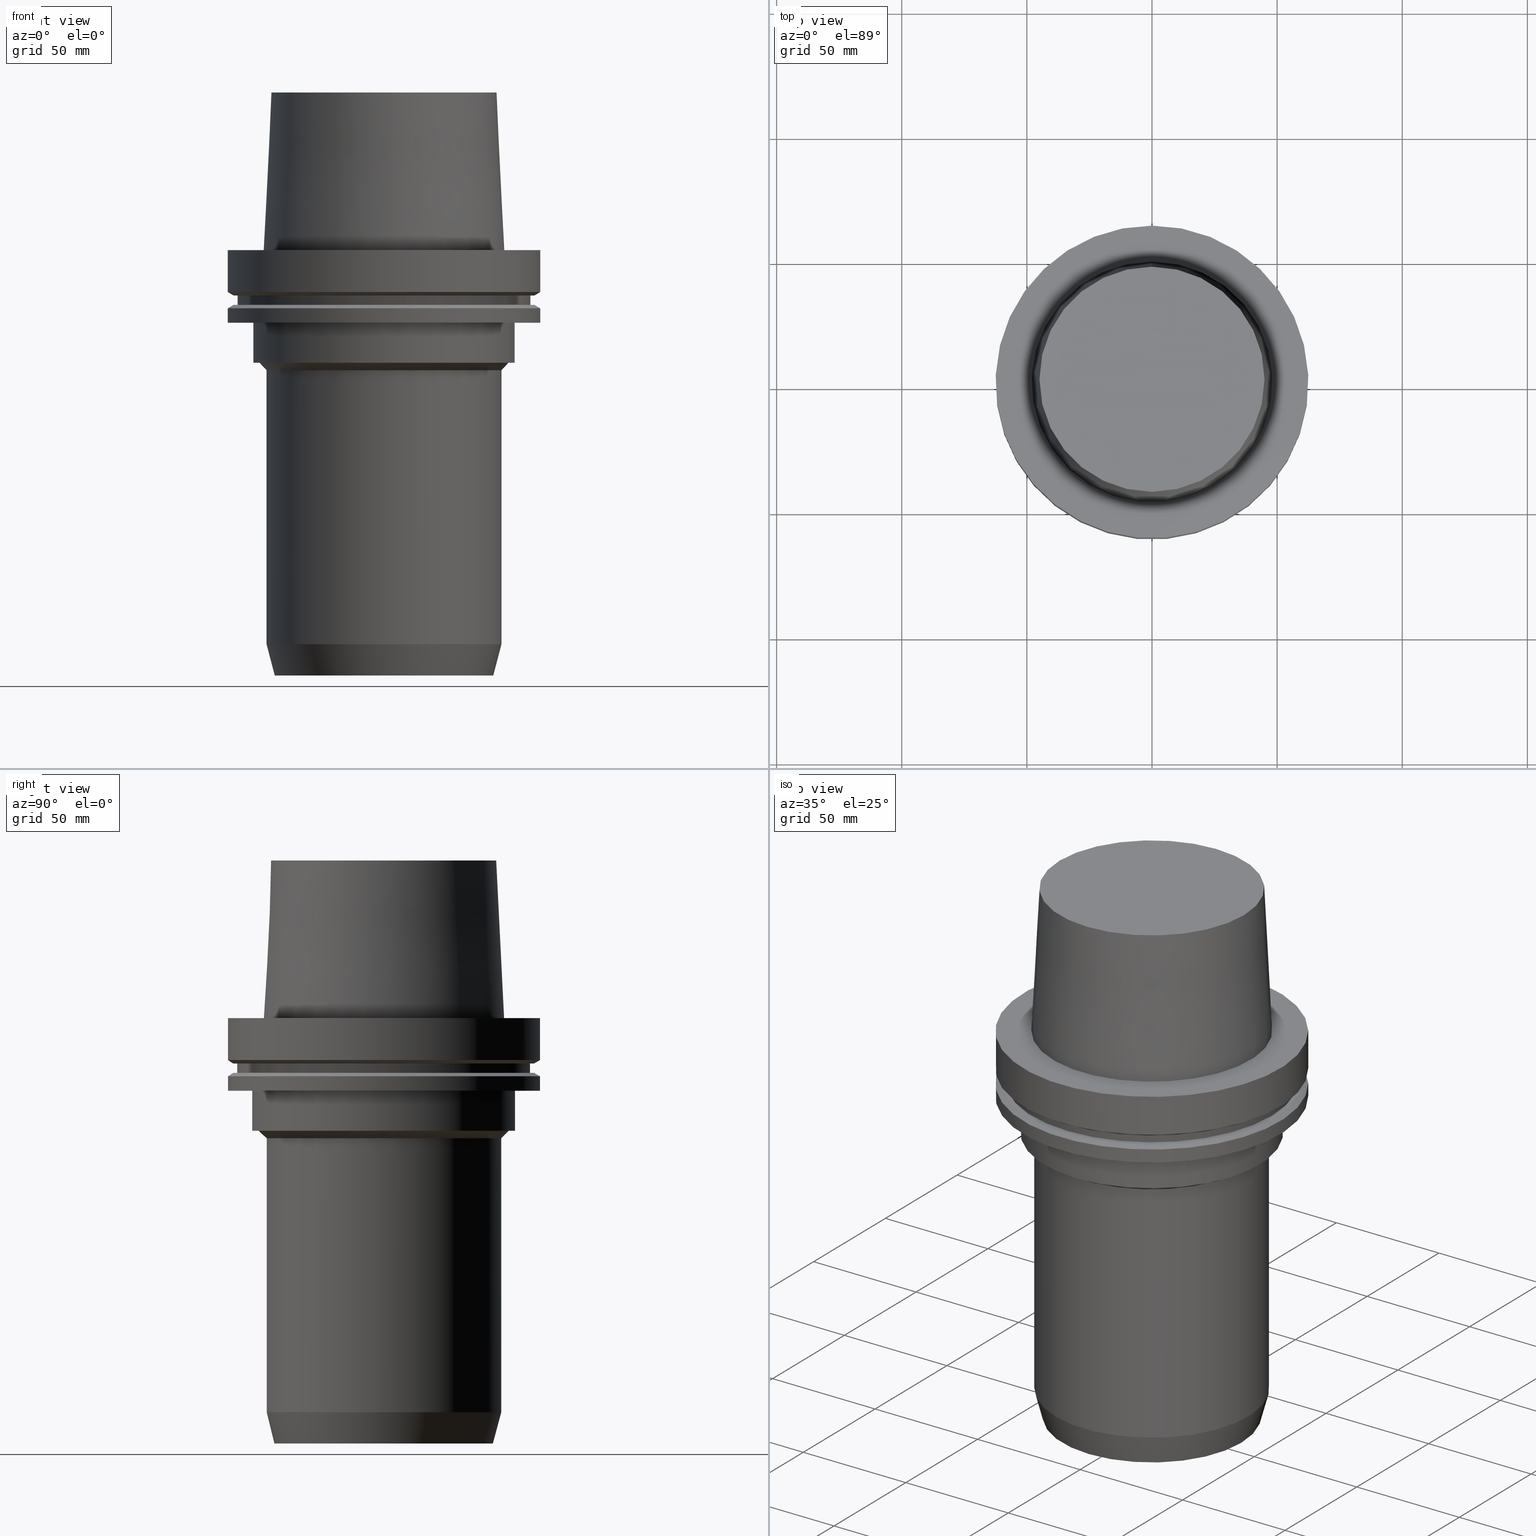
[diagram: canonical four-view strip — front | top / right | iso, engineering-drawing reading convention]
A machine part, canonical four-view strip (front | top / right | iso — engineering-drawing reading convention). The complete STEP part file that produces these views, byte-faithful:
ISO-10303-21;
HEADER;
FILE_DESCRIPTION((''),'1');
FILE_NAME('V:/02_3D_Field-HP\X2\FF71FF6FFF8CFF9F5916\X0\2013/02_Step_Field-HP\X2\FF71FF6FFF8CFF9F5916\X0\2013/HSK-A125-MGT36-170.stp','2017-07-11T04:39:20',(''),(''),'Spatial Interop R21 SP3','Kubotek KeyCreator 2011 V10.0.2 (22737)',' ');
FILE_SCHEMA(('automotive_design'));
ENDSEC;
DATA;
#1=MECHANICAL_DESIGN_GEOMETRIC_PRESENTATION_REPRESENTATION(' ',(#10,#11,#12,#13,#14,#15,#16,#17,#18,#19,#20,#21,#22,#23,#24,#25,#26,#27,#28,#29,#30,#31,#32,#33,#34,#35,#36,#37,#38,#39,#40,#41,#42,#43),#6);
#2=PRODUCT_DEFINITION_CONTEXT('',#44,'design');
#3=APPLICATION_PROTOCOL_DEFINITION('INTERNATIONAL STANDARD','automotive_design',1994,#44);
#4=PRODUCT_CATEGORY_RELATIONSHIP('NONE','NONE',#45,#46);
#5=SHAPE_DEFINITION_REPRESENTATION(#47,#48);
#6= (GEOMETRIC_REPRESENTATION_CONTEXT(3)GLOBAL_UNCERTAINTY_ASSIGNED_CONTEXT((#51))GLOBAL_UNIT_ASSIGNED_CONTEXT((#53,#54,#55))REPRESENTATION_CONTEXT('NONE','WORKSPACE'));
#10=STYLED_ITEM('',(#57),#58);
#11=STYLED_ITEM('',(#59,#60),#61);
#12=STYLED_ITEM('',(#62,#63),#64);
#13=STYLED_ITEM('',(#65),#66);
#14=STYLED_ITEM('',(#67,#68),#69);
#15=STYLED_ITEM('',(#70,#71),#72);
#16=STYLED_ITEM('',(#73,#74),#75);
#17=STYLED_ITEM('',(#76,#77),#78);
#18=STYLED_ITEM('',(#79,#80),#81);
#19=STYLED_ITEM('',(#82,#83),#84);
#20=STYLED_ITEM('',(#85,#86),#87);
#21=STYLED_ITEM('',(#88),#89);
#22=STYLED_ITEM('',(#90),#91);
#23=STYLED_ITEM('',(#92,#93),#94);
#24=STYLED_ITEM('',(#95),#96);
#25=STYLED_ITEM('',(#97),#98);
#26=STYLED_ITEM('',(#99,#100),#101);
#27=STYLED_ITEM('',(#102,#103),#104);
#28=STYLED_ITEM('',(#105),#106);
#29=STYLED_ITEM('',(#107),#108);
#30=STYLED_ITEM('',(#109,#110),#111);
#31=STYLED_ITEM('',(#112,#113),#114);
#32=STYLED_ITEM('',(#115,#116),#117);
#33=STYLED_ITEM('',(#118),#119);
#34=STYLED_ITEM('',(#120),#121);
#35=STYLED_ITEM('',(#122),#123);
#36=STYLED_ITEM('',(#124,#125),#126);
#37=STYLED_ITEM('',(#127),#128);
#38=STYLED_ITEM('',(#129,#130),#131);
#39=STYLED_ITEM('',(#132),#133);
#40=STYLED_ITEM('',(#134),#135);
#41=STYLED_ITEM('',(#136),#137);
#42=STYLED_ITEM('',(#138,#139),#140);
#43=STYLED_ITEM('',(#141),#142);
#44=APPLICATION_CONTEXT(' ');
#45=PRODUCT_CATEGORY('part','NONE');
#46=PRODUCT_RELATED_PRODUCT_CATEGORY('detail',' ',(#143));
#47=PRODUCT_DEFINITION_SHAPE('NONE','NONE',#144);
#48=ADVANCED_BREP_SHAPE_REPRESENTATION('Unnamed[1]',(#114,#145),#6);
#51=UNCERTAINTY_MEASURE_WITH_UNIT(LENGTH_MEASURE(1.0E-006),#53,'','');
#53= (CONVERSION_BASED_UNIT('MILLIMETRE',#148)LENGTH_UNIT()NAMED_UNIT(#151));
#54= (NAMED_UNIT(#153)PLANE_ANGLE_UNIT()SI_UNIT($,.RADIAN.));
#55= (NAMED_UNIT(#153)SOLID_ANGLE_UNIT()SI_UNIT($,.STERADIAN.));
#57=PRESENTATION_STYLE_ASSIGNMENT((#159));
#58=EDGE_CURVE('Unnamed[1]',#160,#160,#161,.T.);
#59=PRESENTATION_STYLE_ASSIGNMENT((#162));
#60=PRESENTATION_STYLE_ASSIGNMENT((#163));
#61=ADVANCED_FACE('Unnamed[1]',(#164),#165,.T.);
#62=PRESENTATION_STYLE_ASSIGNMENT((#166));
#63=PRESENTATION_STYLE_ASSIGNMENT((#167));
#64=ADVANCED_FACE('Unnamed[1]',(#168,#169),#170,.T.);
#65=PRESENTATION_STYLE_ASSIGNMENT((#171));
#66=EDGE_CURVE('Unnamed[1]',#172,#172,#173,.T.);
#67=PRESENTATION_STYLE_ASSIGNMENT((#174));
#68=PRESENTATION_STYLE_ASSIGNMENT((#175));
#69=ADVANCED_FACE('Unnamed[1]',(#176,#177),#178,.T.);
#70=PRESENTATION_STYLE_ASSIGNMENT((#179));
#71=PRESENTATION_STYLE_ASSIGNMENT((#180));
#72=ADVANCED_FACE('Unnamed[1]',(#181,#182),#183,.T.);
#73=PRESENTATION_STYLE_ASSIGNMENT((#184));
#74=PRESENTATION_STYLE_ASSIGNMENT((#185));
#75=ADVANCED_FACE('Unnamed[1]',(#186,#187),#188,.T.);
#76=PRESENTATION_STYLE_ASSIGNMENT((#189));
#77=PRESENTATION_STYLE_ASSIGNMENT((#190));
#78=ADVANCED_FACE('Unnamed[1]',(#191,#192),#193,.T.);
#79=PRESENTATION_STYLE_ASSIGNMENT((#194));
#80=PRESENTATION_STYLE_ASSIGNMENT((#195));
#81=ADVANCED_FACE('Unnamed[1]',(#196,#197),#198,.T.);
#82=PRESENTATION_STYLE_ASSIGNMENT((#199));
#83=PRESENTATION_STYLE_ASSIGNMENT((#200));
#84=ADVANCED_FACE('Unnamed[1]',(#201,#202),#203,.T.);
#85=PRESENTATION_STYLE_ASSIGNMENT((#204));
#86=PRESENTATION_STYLE_ASSIGNMENT((#205));
#87=ADVANCED_FACE('Unnamed[1]',(#206),#207,.T.);
#88=PRESENTATION_STYLE_ASSIGNMENT((#208));
#89=EDGE_CURVE('Unnamed[1]',#209,#209,#210,.T.);
#90=PRESENTATION_STYLE_ASSIGNMENT((#211));
#91=EDGE_CURVE('Unnamed[1]',#212,#212,#213,.T.);
#92=PRESENTATION_STYLE_ASSIGNMENT((#214));
#93=PRESENTATION_STYLE_ASSIGNMENT((#215));
#94=ADVANCED_FACE('Unnamed[1]',(#216,#217),#218,.T.);
#95=PRESENTATION_STYLE_ASSIGNMENT((#219));
#96=EDGE_CURVE('Unnamed[1]',#220,#220,#221,.T.);
#97=PRESENTATION_STYLE_ASSIGNMENT((#222));
#98=EDGE_CURVE('Unnamed[1]',#223,#223,#224,.T.);
#99=PRESENTATION_STYLE_ASSIGNMENT((#225));
#100=PRESENTATION_STYLE_ASSIGNMENT((#226));
#101=ADVANCED_FACE('Unnamed[1]',(#227,#228),#229,.T.);
#102=PRESENTATION_STYLE_ASSIGNMENT((#230));
#103=PRESENTATION_STYLE_ASSIGNMENT((#231));
#104=ADVANCED_FACE('Unnamed[1]',(#232,#233),#234,.T.);
#105=PRESENTATION_STYLE_ASSIGNMENT((#235));
#106=EDGE_CURVE('Unnamed[1]',#236,#236,#237,.T.);
#107=PRESENTATION_STYLE_ASSIGNMENT((#238));
#108=EDGE_CURVE('Unnamed[1]',#239,#239,#240,.T.);
#109=PRESENTATION_STYLE_ASSIGNMENT((#241));
#110=PRESENTATION_STYLE_ASSIGNMENT((#242));
#111=ADVANCED_FACE('Unnamed[1]',(#243,#244),#245,.T.);
#112=PRESENTATION_STYLE_ASSIGNMENT((#246));
#113=PRESENTATION_STYLE_ASSIGNMENT((#247));
#114=MANIFOLD_SOLID_BREP('Unnamed[1]',#248);
#115=PRESENTATION_STYLE_ASSIGNMENT((#249));
#116=PRESENTATION_STYLE_ASSIGNMENT((#250));
#117=ADVANCED_FACE('Unnamed[1]',(#251,#252),#253,.T.);
#118=PRESENTATION_STYLE_ASSIGNMENT((#254));
#119=EDGE_CURVE('Unnamed[1]',#255,#255,#256,.T.);
#120=PRESENTATION_STYLE_ASSIGNMENT((#257));
#121=EDGE_CURVE('Unnamed[1]',#258,#258,#259,.T.);
#122=PRESENTATION_STYLE_ASSIGNMENT((#260));
#123=EDGE_CURVE('Unnamed[1]',#261,#261,#262,.T.);
#124=PRESENTATION_STYLE_ASSIGNMENT((#263));
#125=PRESENTATION_STYLE_ASSIGNMENT((#264));
#126=ADVANCED_FACE('Unnamed[1]',(#265,#266),#267,.T.);
#127=PRESENTATION_STYLE_ASSIGNMENT((#268));
#128=EDGE_CURVE('Unnamed[1]',#269,#269,#270,.T.);
#129=PRESENTATION_STYLE_ASSIGNMENT((#271));
#130=PRESENTATION_STYLE_ASSIGNMENT((#272));
#131=ADVANCED_FACE('Unnamed[1]',(#273,#274),#275,.T.);
#132=PRESENTATION_STYLE_ASSIGNMENT((#276));
#133=EDGE_CURVE('Unnamed[1]',#277,#277,#278,.T.);
#134=PRESENTATION_STYLE_ASSIGNMENT((#279));
#135=EDGE_CURVE('Unnamed[1]',#280,#280,#281,.T.);
#136=PRESENTATION_STYLE_ASSIGNMENT((#282));
#137=EDGE_CURVE('Unnamed[1]',#283,#283,#284,.T.);
#138=PRESENTATION_STYLE_ASSIGNMENT((#285));
#139=PRESENTATION_STYLE_ASSIGNMENT((#286));
#140=ADVANCED_FACE('Unnamed[1]',(#287,#288),#289,.T.);
#141=PRESENTATION_STYLE_ASSIGNMENT((#290));
#142=EDGE_CURVE('Unnamed[1]',#291,#291,#292,.T.);
#143=PRODUCT('Unnamed[1]','Unnamed[1]','PART-Unnamed[1]-DESC',(#293));
#144=PRODUCT_DEFINITION('NONE','NONE',#294,#2);
#145=AXIS2_PLACEMENT_3D('',#295,#296,#297);
#148=LENGTH_MEASURE_WITH_UNIT(LENGTH_MEASURE(1.0),#298);
#151=DIMENSIONAL_EXPONENTS(1.0,0.0,0.0,0.0,0.0,0.0,0.0);
#153=DIMENSIONAL_EXPONENTS(0.0,0.0,0.0,0.0,0.0,0.0,0.0);
#159=CURVE_STYLE('',#299,POSITIVE_LENGTH_MEASURE(1000.0),#300);
#160=VERTEX_POINT('',#301);
#161=CIRCLE('',#302,62.5);
#162=SURFACE_STYLE_USAGE(.BOTH.,#303);
#163=CURVE_STYLE('',#304,POSITIVE_LENGTH_MEASURE(1000.0),#305);
#164=FACE_OUTER_BOUND('',#306,.T.);
#165=PLANE('',#307);
#166=SURFACE_STYLE_USAGE(.BOTH.,#308);
#167=CURVE_STYLE('',#309,POSITIVE_LENGTH_MEASURE(1000.0),#310);
#168=FACE_BOUND('',#311,.T.);
#169=FACE_BOUND('',#312,.T.);
#170=CYLINDRICAL_SURFACE('',#313,62.5000000000001);
#171=CURVE_STYLE('',#314,POSITIVE_LENGTH_MEASURE(1000.0),#315);
#172=VERTEX_POINT('',#316);
#173=CIRCLE('',#317,43.6506350946142);
#174=SURFACE_STYLE_USAGE(.BOTH.,#318);
#175=CURVE_STYLE('',#319,POSITIVE_LENGTH_MEASURE(1000.0),#320);
#176=FACE_BOUND('',#321,.T.);
#177=FACE_BOUND('',#322,.T.);
#178=CONICAL_SURFACE('',#323,46.5560961923844,0.0500583457465964);
#179=SURFACE_STYLE_USAGE(.BOTH.,#324);
#180=CURVE_STYLE('',#325,POSITIVE_LENGTH_MEASURE(1000.0),#326);
#181=FACE_BOUND('',#327,.T.);
#182=FACE_BOUND('',#328,.T.);
#183=CONICAL_SURFACE('',#329,61.3112976320956,1.04719755119668);
#184=SURFACE_STYLE_USAGE(.BOTH.,#330);
#185=CURVE_STYLE('',#331,POSITIVE_LENGTH_MEASURE(1000.0),#332);
#186=FACE_BOUND('',#333,.T.);
#187=FACE_BOUND('',#334,.T.);
#188=CYLINDRICAL_SURFACE('',#335,62.5);
#189=SURFACE_STYLE_USAGE(.BOTH.,#336);
#190=CURVE_STYLE('',#337,POSITIVE_LENGTH_MEASURE(1000.0),#338);
#191=FACE_BOUND('',#339,.T.);
#192=FACE_BOUND('',#340,.T.);
#193=CYLINDRICAL_SURFACE('',#341,46.9999999999985);
#194=SURFACE_STYLE_USAGE(.BOTH.,#342);
#195=CURVE_STYLE('',#343,POSITIVE_LENGTH_MEASURE(1000.0),#344);
#196=FACE_BOUND('',#345,.T.);
#197=FACE_BOUND('',#346,.T.);
#198=CONICAL_SURFACE('',#347,45.3253175473074,0.261799387799478);
#199=SURFACE_STYLE_USAGE(.BOTH.,#348);
#200=CURVE_STYLE('',#349,POSITIVE_LENGTH_MEASURE(1000.0),#350);
#201=FACE_BOUND('',#351,.T.);
#202=FACE_OUTER_BOUND('',#352,.T.);
#203=PLANE('',#353);
#204=SURFACE_STYLE_USAGE(.BOTH.,#354);
#205=CURVE_STYLE('',#355,POSITIVE_LENGTH_MEASURE(1000.0),#356);
#206=FACE_OUTER_BOUND('',#357,.T.);
#207=PLANE('',#358);
#208=CURVE_STYLE('',#359,POSITIVE_LENGTH_MEASURE(1000.0),#360);
#209=VERTEX_POINT('',#361);
#210=CIRCLE('',#362,62.5);
#211=CURVE_STYLE('',#363,POSITIVE_LENGTH_MEASURE(1000.0),#364);
#212=VERTEX_POINT('',#365);
#213=CIRCLE('',#366,49.9999999999965);
#214=SURFACE_STYLE_USAGE(.BOTH.,#367);
#215=CURVE_STYLE('',#368,POSITIVE_LENGTH_MEASURE(1000.0),#369);
#216=FACE_OUTER_BOUND('',#370,.T.);
#217=FACE_BOUND('',#371,.T.);
#218=PLANE('',#372);
#219=CURVE_STYLE('',#373,POSITIVE_LENGTH_MEASURE(1000.0),#374);
#220=VERTEX_POINT('',#375);
#221=CIRCLE('',#376,58.5);
#222=CURVE_STYLE('',#377,POSITIVE_LENGTH_MEASURE(1000.0),#378);
#223=VERTEX_POINT('',#379);
#224=CIRCLE('',#380,48.1342525050097);
#225=SURFACE_STYLE_USAGE(.BOTH.,#381);
#226=CURVE_STYLE('',#382,POSITIVE_LENGTH_MEASURE(1000.0),#383);
#227=FACE_OUTER_BOUND('',#384,.T.);
#228=FACE_BOUND('',#385,.T.);
#229=PLANE('',#386);
#230=SURFACE_STYLE_USAGE(.BOTH.,#387);
#231=CURVE_STYLE('',#388,POSITIVE_LENGTH_MEASURE(1000.0),#389);
#232=FACE_BOUND('',#390,.T.);
#233=FACE_OUTER_BOUND('',#391,.T.);
#234=PLANE('',#392);
#235=CURVE_STYLE('',#393,POSITIVE_LENGTH_MEASURE(1000.0),#394);
#236=VERTEX_POINT('',#395);
#237=CIRCLE('',#396,52.5);
#238=CURVE_STYLE('',#397,POSITIVE_LENGTH_MEASURE(1000.0),#398);
#239=VERTEX_POINT('',#399);
#240=CIRCLE('',#400,46.9999999999965);
#241=SURFACE_STYLE_USAGE(.BOTH.,#401);
#242=CURVE_STYLE('',#402,POSITIVE_LENGTH_MEASURE(1000.0),#403);
#243=FACE_BOUND('',#404,.T.);
#244=FACE_BOUND('',#405,.T.);
#245=CYLINDRICAL_SURFACE('',#406,58.4999999999999);
#246=SURFACE_STYLE_USAGE(.BOTH.,#407);
#247=CURVE_STYLE('',#408,POSITIVE_LENGTH_MEASURE(1000.0),#409);
#248=CLOSED_SHELL('',(#61,#69,#101,#64,#72,#104,#111,#94,#126,#75,#84,#140,#117,#131,#78,#81,#87));
#249=SURFACE_STYLE_USAGE(.BOTH.,#410);
#250=CURVE_STYLE('',#411,POSITIVE_LENGTH_MEASURE(1000.0),#412);
#251=FACE_BOUND('',#413,.T.);
#252=FACE_OUTER_BOUND('',#414,.T.);
#253=PLANE('',#415);
#254=CURVE_STYLE('',#416,POSITIVE_LENGTH_MEASURE(1000.0),#417);
#255=VERTEX_POINT('',#418);
#256=CIRCLE('',#419,62.5000000000002);
#257=CURVE_STYLE('',#420,POSITIVE_LENGTH_MEASURE(1000.0),#421);
#258=VERTEX_POINT('',#422);
#259=CIRCLE('',#423,44.9779398797591);
#260=CURVE_STYLE('',#424,POSITIVE_LENGTH_MEASURE(1000.0),#425);
#261=VERTEX_POINT('',#426);
#262=CIRCLE('',#427,58.4999999999998);
#263=SURFACE_STYLE_USAGE(.BOTH.,#428);
#264=CURVE_STYLE('',#429,POSITIVE_LENGTH_MEASURE(1000.0),#430);
#265=FACE_BOUND('',#431,.T.);
#266=FACE_BOUND('',#432,.T.);
#267=CONICAL_SURFACE('',#433,61.311297632097,1.04719755119646);
#268=CURVE_STYLE('',#434,POSITIVE_LENGTH_MEASURE(1000.0),#435);
#269=VERTEX_POINT('',#436);
#270=CIRCLE('',#437,60.122595264194);
#271=SURFACE_STYLE_USAGE(.BOTH.,#438);
#272=CURVE_STYLE('',#439,POSITIVE_LENGTH_MEASURE(1000.0),#440);
#273=FACE_BOUND('',#441,.T.);
#274=FACE_BOUND('',#442,.T.);
#275=CONICAL_SURFACE('',#443,48.4999999999965,0.785398163397439);
#276=CURVE_STYLE('',#444,POSITIVE_LENGTH_MEASURE(1000.0),#445);
#277=VERTEX_POINT('',#446);
#278=CIRCLE('',#447,52.4999999999999);
#279=CURVE_STYLE('',#448,POSITIVE_LENGTH_MEASURE(1000.0),#449);
#280=VERTEX_POINT('',#450);
#281=CIRCLE('',#451,62.5);
#282=CURVE_STYLE('',#452,POSITIVE_LENGTH_MEASURE(1000.0),#453);
#283=VERTEX_POINT('',#454);
#284=CIRCLE('',#455,60.1225952641912);
#285=SURFACE_STYLE_USAGE(.BOTH.,#456);
#286=CURVE_STYLE('',#457,POSITIVE_LENGTH_MEASURE(1000.0),#458);
#287=FACE_BOUND('',#459,.T.);
#288=FACE_BOUND('',#460,.T.);
#289=CYLINDRICAL_SURFACE('',#461,52.4999999999999);
#290=CURVE_STYLE('',#462,POSITIVE_LENGTH_MEASURE(1000.0),#463);
#291=VERTEX_POINT('',#464);
#292=CIRCLE('',#465,47.0000000000005);
#293=PRODUCT_CONTEXT('',#44,'mechanical');
#294=PRODUCT_DEFINITION_FORMATION_WITH_SPECIFIED_SOURCE(' ','NONE',#143,.NOT_KNOWN.);
#295=CARTESIAN_POINT('',(0.0,0.0,0.0));
#296=DIRECTION('',(0.0,0.0,1.0));
#297=DIRECTION('',(1.0,0.0,0.0));
#298= (NAMED_UNIT(#151)LENGTH_UNIT()SI_UNIT(.MILLI.,.METRE.));
#299=DRAUGHTING_PRE_DEFINED_CURVE_FONT('continuous');
#300=COLOUR_RGB('',0.0,1.0,0.0);
#301=CARTESIAN_POINT('',(1.77573785876367E-015,62.5,-29.0000000000001));
#302=AXIS2_PLACEMENT_3D('',#467,#468,#469);
#303=SURFACE_SIDE_STYLE('',(#470));
#304=DRAUGHTING_PRE_DEFINED_CURVE_FONT('continuous');
#305=COLOUR_RGB('',0.0,1.0,0.0);
#306=EDGE_LOOP('',(#471));
#307=AXIS2_PLACEMENT_3D('',#472,#473,#474);
#308=SURFACE_SIDE_STYLE('',(#475));
#309=DRAUGHTING_PRE_DEFINED_CURVE_FONT('continuous');
#310=COLOUR_RGB('',0.0,1.0,0.0);
#311=EDGE_LOOP('',(#476));
#312=EDGE_LOOP('',(#477));
#313=AXIS2_PLACEMENT_3D('',#478,#479,#480);
#314=DRAUGHTING_PRE_DEFINED_CURVE_FONT('continuous');
#315=COLOUR_RGB('',0.0,1.0,0.0);
#316=CARTESIAN_POINT('',(1.04094977927544E-014,43.6506350946142,-170.000000000031));
#317=AXIS2_PLACEMENT_3D('',#481,#482,#483);
#318=SURFACE_SIDE_STYLE('',(#484));
#319=DRAUGHTING_PRE_DEFINED_CURVE_FONT('continuous');
#320=COLOUR_RGB('',0.0,1.0,0.0);
#321=EDGE_LOOP('',(#485));
#322=EDGE_LOOP('',(#486));
#323=AXIS2_PLACEMENT_3D('',#487,#488,#489);
#324=SURFACE_SIDE_STYLE('',(#490));
#325=DRAUGHTING_PRE_DEFINED_CURVE_FONT('continuous');
#326=COLOUR_RGB('',0.0,1.0,0.0);
#327=EDGE_LOOP('',(#491));
#328=EDGE_LOOP('',(#492));
#329=AXIS2_PLACEMENT_3D('',#493,#494,#495);
#330=SURFACE_SIDE_STYLE('',(#496));
#331=DRAUGHTING_PRE_DEFINED_CURVE_FONT('continuous');
#332=COLOUR_RGB('',0.0,1.0,0.0);
#333=EDGE_LOOP('',(#497));
#334=EDGE_LOOP('',(#498));
#335=AXIS2_PLACEMENT_3D('',#499,#500,#501);
#336=SURFACE_SIDE_STYLE('',(#502));
#337=DRAUGHTING_PRE_DEFINED_CURVE_FONT('continuous');
#338=COLOUR_RGB('',0.0,1.0,0.0);
#339=EDGE_LOOP('',(#503));
#340=EDGE_LOOP('',(#504));
#341=AXIS2_PLACEMENT_3D('',#505,#506,#507);
#342=SURFACE_SIDE_STYLE('',(#508));
#343=DRAUGHTING_PRE_DEFINED_CURVE_FONT('continuous');
#344=COLOUR_RGB('',0.0,1.0,0.0);
#345=EDGE_LOOP('',(#509));
#346=EDGE_LOOP('',(#510));
#347=AXIS2_PLACEMENT_3D('',#511,#512,#513);
#348=SURFACE_SIDE_STYLE('',(#514));
#349=DRAUGHTING_PRE_DEFINED_CURVE_FONT('continuous');
#350=COLOUR_RGB('',0.0,1.0,0.0);
#351=EDGE_LOOP('',(#515));
#352=EDGE_LOOP('',(#516));
#353=AXIS2_PLACEMENT_3D('',#517,#518,#519);
#354=SURFACE_SIDE_STYLE('',(#520));
#355=DRAUGHTING_PRE_DEFINED_CURVE_FONT('continuous');
#356=COLOUR_RGB('',0.0,1.0,0.0);
#357=EDGE_LOOP('',(#521));
#358=AXIS2_PLACEMENT_3D('',#522,#523,#524);
#359=DRAUGHTING_PRE_DEFINED_CURVE_FONT('continuous');
#360=COLOUR_RGB('',0.0,1.0,0.0);
#361=CARTESIAN_POINT('',(1.02578894188644E-015,62.5,-16.7524047358084));
#362=AXIS2_PLACEMENT_3D('',#525,#526,#527);
#363=DRAUGHTING_PRE_DEFINED_CURVE_FONT('continuous');
#364=COLOUR_RGB('',0.0,1.0,0.0);
#365=CARTESIAN_POINT('',(2.75545529808155E-015,49.9999999999965,-45.0000000000001));
#366=AXIS2_PLACEMENT_3D('',#528,#529,#530);
#367=SURFACE_SIDE_STYLE('',(#531));
#368=DRAUGHTING_PRE_DEFINED_CURVE_FONT('continuous');
#369=COLOUR_RGB('',0.0,1.0,0.0);
#370=EDGE_LOOP('',(#532));
#371=EDGE_LOOP('',(#533));
#372=AXIS2_PLACEMENT_3D('',#534,#535,#536);
#373=DRAUGHTING_PRE_DEFINED_CURVE_FONT('continuous');
#374=COLOUR_RGB('',0.0,1.0,0.0);
#375=CARTESIAN_POINT('',(1.10983616172739E-015,58.5,-18.1250000000017));
#376=AXIS2_PLACEMENT_3D('',#537,#538,#539);
#377=DRAUGHTING_PRE_DEFINED_CURVE_FONT('continuous');
#378=COLOUR_RGB('',0.0,1.0,0.0);
#379=CARTESIAN_POINT('',(3.88342032297484E-029,48.1342525050097,-6.38005254174039E-013));
#380=AXIS2_PLACEMENT_3D('',#540,#541,#542);
#381=SURFACE_SIDE_STYLE('',(#543));
#382=DRAUGHTING_PRE_DEFINED_CURVE_FONT('continuous');
#383=COLOUR_RGB('',0.0,1.0,0.0);
#384=EDGE_LOOP('',(#544));
#385=EDGE_LOOP('',(#545));
#386=AXIS2_PLACEMENT_3D('',#546,#547,#548);
#387=SURFACE_SIDE_STYLE('',(#549));
#388=DRAUGHTING_PRE_DEFINED_CURVE_FONT('continuous');
#389=COLOUR_RGB('',0.0,1.0,0.0);
#390=EDGE_LOOP('',(#550));
#391=EDGE_LOOP('',(#551));
#392=AXIS2_PLACEMENT_3D('',#552,#553,#554);
#393=DRAUGHTING_PRE_DEFINED_CURVE_FONT('continuous');
#394=COLOUR_RGB('',0.0,1.0,0.0);
#395=CARTESIAN_POINT('',(1.77573785876367E-015,52.5,-29.0000000000001));
#396=AXIS2_PLACEMENT_3D('',#555,#556,#557);
#397=DRAUGHTING_PRE_DEFINED_CURVE_FONT('continuous');
#398=COLOUR_RGB('',0.0,1.0,0.0);
#399=CARTESIAN_POINT('',(2.93915231795366E-015,46.9999999999965,-48.0000000000001));
#400=AXIS2_PLACEMENT_3D('',#558,#559,#560);
#401=SURFACE_SIDE_STYLE('',(#561));
#402=DRAUGHTING_PRE_DEFINED_CURVE_FONT('continuous');
#403=COLOUR_RGB('',0.0,1.0,0.0);
#404=EDGE_LOOP('',(#562));
#405=EDGE_LOOP('',(#563));
#406=AXIS2_PLACEMENT_3D('',#564,#565,#566);
#407=SURFACE_SIDE_STYLE('',(#567));
#408=DRAUGHTING_PRE_DEFINED_CURVE_FONT('continuous');
#409=COLOUR_RGB('',0.0,1.0,0.0);
#410=SURFACE_SIDE_STYLE('',(#568));
#411=DRAUGHTING_PRE_DEFINED_CURVE_FONT('continuous');
#412=COLOUR_RGB('',0.0,1.0,0.0);
#413=EDGE_LOOP('',(#569));
#414=EDGE_LOOP('',(#570));
#415=AXIS2_PLACEMENT_3D('',#571,#572,#573);
#416=DRAUGHTING_PRE_DEFINED_CURVE_FONT('continuous');
#417=COLOUR_RGB('',0.0,1.0,0.0);
#418=CARTESIAN_POINT('',(-5.58935713239973E-030,62.5000000000002,8.63540424946709E-014));
#419=AXIS2_PLACEMENT_3D('',#574,#575,#576);
#420=DRAUGHTING_PRE_DEFINED_CURVE_FONT('continuous');
#421=COLOUR_RGB('',0.0,1.0,0.0);
#422=CARTESIAN_POINT('',(-3.85763741731416E-015,44.9779398797591,62.9999999999999));
#423=AXIS2_PLACEMENT_3D('',#577,#578,#579);
#424=DRAUGHTING_PRE_DEFINED_CURVE_FONT('continuous');
#425=COLOUR_RGB('',0.0,1.0,0.0);
#426=CARTESIAN_POINT('',(1.33945743656732E-015,58.4999999999998,-21.8749999999984));
#427=AXIS2_PLACEMENT_3D('',#580,#581,#582);
#428=SURFACE_SIDE_STYLE('',(#583));
#429=DRAUGHTING_PRE_DEFINED_CURVE_FONT('continuous');
#430=COLOUR_RGB('',0.0,1.0,0.0);
#431=EDGE_LOOP('',(#584));
#432=EDGE_LOOP('',(#585));
#433=AXIS2_PLACEMENT_3D('',#586,#587,#588);
#434=DRAUGHTING_PRE_DEFINED_CURVE_FONT('continuous');
#435=COLOUR_RGB('',0.0,1.0,0.0);
#436=CARTESIAN_POINT('',(1.33945743656747E-015,60.122595264194,-21.8750000000009));
#437=AXIS2_PLACEMENT_3D('',#589,#590,#591);
#438=SURFACE_SIDE_STYLE('',(#592));
#439=DRAUGHTING_PRE_DEFINED_CURVE_FONT('continuous');
#440=COLOUR_RGB('',0.0,1.0,0.0);
#441=EDGE_LOOP('',(#593));
#442=EDGE_LOOP('',(#594));
#443=AXIS2_PLACEMENT_3D('',#595,#596,#597);
#444=DRAUGHTING_PRE_DEFINED_CURVE_FONT('continuous');
#445=COLOUR_RGB('',0.0,1.0,0.0);
#446=CARTESIAN_POINT('',(2.75545529808155E-015,52.4999999999999,-45.0000000000001));
#447=AXIS2_PLACEMENT_3D('',#598,#599,#600);
#448=DRAUGHTING_PRE_DEFINED_CURVE_FONT('continuous');
#449=COLOUR_RGB('',0.0,1.0,0.0);
#450=CARTESIAN_POINT('',(1.42350465640827E-015,62.5,-23.2475952641916));
#451=AXIS2_PLACEMENT_3D('',#601,#602,#603);
#452=DRAUGHTING_PRE_DEFINED_CURVE_FONT('continuous');
#453=COLOUR_RGB('',0.0,1.0,0.0);
#454=CARTESIAN_POINT('',(1.10983616172729E-015,60.1225952641912,-18.1250000000001));
#455=AXIS2_PLACEMENT_3D('',#604,#605,#606);
#456=SURFACE_SIDE_STYLE('',(#607));
#457=DRAUGHTING_PRE_DEFINED_CURVE_FONT('continuous');
#458=COLOUR_RGB('',0.0,1.0,0.0);
#459=EDGE_LOOP('',(#608));
#460=EDGE_LOOP('',(#609));
#461=AXIS2_PLACEMENT_3D('',#610,#611,#612);
#462=DRAUGHTING_PRE_DEFINED_CURVE_FONT('continuous');
#463=COLOUR_RGB('',0.0,1.0,0.0);
#464=CARTESIAN_POINT('',(9.64409354328889E-015,47.0000000000006,-157.500000000057));
#465=AXIS2_PLACEMENT_3D('',#613,#614,#615);
#467=CARTESIAN_POINT('',(1.77573785876367E-015,3.55147571752733E-015,-29.0000000000001));
#468=DIRECTION('',(6.12323399573677E-017,1.22464679914735E-016,-1.0));
#469=DIRECTION('',(-1.23259516440783E-032,1.0,1.22464679914735E-016));
#470=SURFACE_STYLE_FILL_AREA(#616);
#471=ORIENTED_EDGE('',*,*,#121,.F.);
#472=CARTESIAN_POINT('',(-3.85763741731416E-015,22.4889699398795,62.9999999999999));
#473=DIRECTION('',(-6.12323399573677E-017,-1.22464679914735E-016,1.0));
#474=DIRECTION('',(1.23259516440783E-032,-1.0,-1.22464679914735E-016));
#475=SURFACE_STYLE_FILL_AREA(#617);
#476=ORIENTED_EDGE('',*,*,#89,.F.);
#477=ORIENTED_EDGE('',*,*,#119,.T.);
#478=CARTESIAN_POINT('',(5.12894470943216E-016,1.02578894188643E-015,-8.37620236790417));
#479=DIRECTION('',(6.12323399573677E-017,1.22464679914735E-016,-1.0));
#480=DIRECTION('',(-1.23259516440783E-032,1.0,1.22464679914735E-016));
#481=CARTESIAN_POINT('',(1.04094977927544E-014,2.08189955855087E-014,-170.000000000031));
#482=DIRECTION('',(6.12323399573677E-017,1.22464679914735E-016,-1.0));
#483=DIRECTION('',(-1.23259516440783E-032,1.0,1.22464679914735E-016));
#484=SURFACE_STYLE_FILL_AREA(#618);
#485=ORIENTED_EDGE('',*,*,#98,.F.);
#486=ORIENTED_EDGE('',*,*,#121,.T.);
#487=CARTESIAN_POINT('',(-1.92881870865706E-015,-3.85763741731412E-015,31.4999999999996));
#488=DIRECTION('',(6.12323399573676E-017,1.22464679914735E-016,-1.0));
#489=DIRECTION('',(-1.23259516440783E-032,1.0,1.22464679914735E-016));
#490=SURFACE_STYLE_FILL_AREA(#619);
#491=ORIENTED_EDGE('',*,*,#137,.F.);
#492=ORIENTED_EDGE('',*,*,#89,.T.);
#493=CARTESIAN_POINT('',(1.06781255180686E-015,2.13562510361373E-015,-17.4387023679042));
#494=DIRECTION('',(-6.12323399573676E-017,-1.22464679914735E-016,1.0));
#495=DIRECTION('',(-1.23259516440783E-032,1.0,1.22464679914735E-016));
#496=SURFACE_STYLE_FILL_AREA(#620);
#497=ORIENTED_EDGE('',*,*,#58,.F.);
#498=ORIENTED_EDGE('',*,*,#135,.T.);
#499=CARTESIAN_POINT('',(1.59962125758597E-015,3.19924251517194E-015,-26.1237976320958));
#500=DIRECTION('',(6.12323399573677E-017,1.22464679914735E-016,-1.0));
#501=DIRECTION('',(-1.23259516440783E-032,1.0,1.22464679914735E-016));
#502=SURFACE_STYLE_FILL_AREA(#621);
#503=ORIENTED_EDGE('',*,*,#142,.F.);
#504=ORIENTED_EDGE('',*,*,#108,.T.);
#505=CARTESIAN_POINT('',(6.29162293062127E-015,1.25832458612425E-014,-102.750000000029));
#506=DIRECTION('',(6.12323399573677E-017,1.22464679914735E-016,-1.0));
#507=DIRECTION('',(-1.23259516440783E-032,1.0,1.22464679914735E-016));
#508=SURFACE_STYLE_FILL_AREA(#622);
#509=ORIENTED_EDGE('',*,*,#66,.F.);
#510=ORIENTED_EDGE('',*,*,#142,.T.);
#511=CARTESIAN_POINT('',(1.00267956680216E-014,2.00535913360433E-014,-163.750000000044));
#512=DIRECTION('',(-6.12323399573677E-017,-1.22464679914735E-016,1.0));
#513=DIRECTION('',(-1.23259516440783E-032,1.0,1.22464679914735E-016));
#514=SURFACE_STYLE_FILL_AREA(#623);
#515=ORIENTED_EDGE('',*,*,#106,.F.);
#516=ORIENTED_EDGE('',*,*,#58,.T.);
#517=CARTESIAN_POINT('',(1.77573785876367E-015,57.5,-29.0000000000001));
#518=DIRECTION('',(6.12323399573677E-017,1.22464679914735E-016,-1.0));
#519=DIRECTION('',(-1.23259516440783E-032,1.0,1.22464679914735E-016));
#520=SURFACE_STYLE_FILL_AREA(#624);
#521=ORIENTED_EDGE('',*,*,#66,.T.);
#522=CARTESIAN_POINT('',(1.04094977927544E-014,21.8253175473071,-170.000000000031));
#523=DIRECTION('',(6.12323399573677E-017,4.24451275454592E-014,-1.0));
#524=DIRECTION('',(-2.60384163212816E-030,1.0,4.24451275454592E-014));
#525=CARTESIAN_POINT('',(1.02578894188644E-015,2.05157788377287E-015,-16.7524047358084));
#526=DIRECTION('',(6.12323399573676E-017,1.22464679914735E-016,-1.0));
#527=DIRECTION('',(-1.23259516440783E-032,1.0,1.22464679914735E-016));
#528=CARTESIAN_POINT('',(2.75545529808155E-015,5.5109105961631E-015,-45.0000000000001));
#529=DIRECTION('',(6.12323399573676E-017,1.22464679914735E-016,-1.0));
#530=DIRECTION('',(-1.23259516440783E-032,1.0,1.22464679914735E-016));
#531=SURFACE_STYLE_FILL_AREA(#625);
#532=ORIENTED_EDGE('',*,*,#128,.F.);
#533=ORIENTED_EDGE('',*,*,#123,.T.);
#534=CARTESIAN_POINT('',(1.33945743656739E-015,59.3112976320969,-21.8749999999996));
#535=DIRECTION('',(-6.12323399573677E-017,1.54130347502767E-012,1.0));
#536=DIRECTION('',(-9.43727912076354E-029,-1.0,1.54130347502767E-012));
#537=CARTESIAN_POINT('',(1.10983616172739E-015,2.21967232345478E-015,-18.1250000000017));
#538=DIRECTION('',(6.12323399573677E-017,1.22464679914735E-016,-1.0));
#539=DIRECTION('',(-1.23259516440783E-032,1.0,1.22464679914735E-016));
#540=CARTESIAN_POINT('',(4.00275388022765E-029,8.00550776045529E-029,-6.53699316899292E-013));
#541=DIRECTION('',(6.12323399573677E-017,1.22464679914735E-016,-1.0));
#542=DIRECTION('',(-1.23259516440783E-032,1.0,1.22464679914735E-016));
#543=SURFACE_STYLE_FILL_AREA(#626);
#544=ORIENTED_EDGE('',*,*,#119,.F.);
#545=ORIENTED_EDGE('',*,*,#98,.T.);
#546=CARTESIAN_POINT('',(1.66224230486744E-029,55.317126252505,-2.75825605839684E-013));
#547=DIRECTION('',(-6.12323399573677E-017,-5.04226666187264E-014,1.0));
#548=DIRECTION('',(3.09232501668564E-030,-1.0,-5.04226666187264E-014));
#549=SURFACE_STYLE_FILL_AREA(#627);
#550=ORIENTED_EDGE('',*,*,#96,.F.);
#551=ORIENTED_EDGE('',*,*,#137,.T.);
#552=CARTESIAN_POINT('',(1.10983616172734E-015,59.3112976320956,-18.1250000000009));
#553=DIRECTION('',(6.12323399573677E-017,9.85408931824386E-013,-1.0));
#554=DIRECTION('',(-6.03437218632281E-029,1.0,9.85408931824386E-013));
#555=CARTESIAN_POINT('',(1.77573785876367E-015,3.55147571752733E-015,-29.0000000000001));
#556=DIRECTION('',(6.12323399573677E-017,1.22464679914735E-016,-1.0));
#557=DIRECTION('',(-1.23259516440783E-032,1.0,1.22464679914735E-016));
#558=CARTESIAN_POINT('',(2.93915231795366E-015,5.87830463590731E-015,-48.0000000000001));
#559=DIRECTION('',(6.12323399573677E-017,1.22464679914735E-016,-1.0));
#560=DIRECTION('',(-1.23259516440783E-032,1.0,1.22464679914735E-016));
#561=SURFACE_STYLE_FILL_AREA(#628);
#562=ORIENTED_EDGE('',*,*,#123,.F.);
#563=ORIENTED_EDGE('',*,*,#96,.T.);
#564=CARTESIAN_POINT('',(1.22464679914736E-015,2.44929359829471E-015,-20.0));
#565=DIRECTION('',(6.12323399573677E-017,1.22464679914735E-016,-1.0));
#566=DIRECTION('',(-1.23259516440783E-032,1.0,1.22464679914735E-016));
#567=SURFACE_STYLE_FILL_AREA(#629);
#568=SURFACE_STYLE_FILL_AREA(#630);
#569=ORIENTED_EDGE('',*,*,#91,.F.);
#570=ORIENTED_EDGE('',*,*,#133,.T.);
#571=CARTESIAN_POINT('',(2.75545529808155E-015,51.2499999999982,-45.0000000000001));
#572=DIRECTION('',(6.12323399573677E-017,-2.7197062631218E-015,-1.0));
#573=DIRECTION('',(1.61706825756887E-031,1.0,-2.7197062631218E-015));
#574=CARTESIAN_POINT('',(-5.22098332203606E-030,-1.04419666440721E-029,8.5265128291212E-014));
#575=DIRECTION('',(6.12323399573677E-017,1.22464679914735E-016,-1.0));
#576=DIRECTION('',(-1.23259516440783E-032,1.0,1.22464679914735E-016));
#577=CARTESIAN_POINT('',(-3.85763741731416E-015,-7.71527483462831E-015,62.9999999999999));
#578=DIRECTION('',(6.12323399573677E-017,1.22464679914735E-016,-1.0));
#579=DIRECTION('',(-1.23259516440783E-032,1.0,1.22464679914735E-016));
#580=CARTESIAN_POINT('',(1.33945743656732E-015,2.67891487313464E-015,-21.8749999999984));
#581=DIRECTION('',(6.12323399573677E-017,1.22464679914735E-016,-1.0));
#582=DIRECTION('',(-1.23259516440783E-032,1.0,1.22464679914735E-016));
#583=SURFACE_STYLE_FILL_AREA(#631);
#584=ORIENTED_EDGE('',*,*,#135,.F.);
#585=ORIENTED_EDGE('',*,*,#128,.T.);
#586=CARTESIAN_POINT('',(1.38148104648787E-015,2.76296209297574E-015,-22.5612976320962));
#587=DIRECTION('',(6.12323399573677E-017,1.22464679914735E-016,-1.0));
#588=DIRECTION('',(-1.23259516440783E-032,1.0,1.22464679914735E-016));
#589=CARTESIAN_POINT('',(1.33945743656747E-015,2.67891487313494E-015,-21.8750000000009));
#590=DIRECTION('',(6.12323399573677E-017,1.22464679914735E-016,-1.0));
#591=DIRECTION('',(-1.23259516440783E-032,1.0,1.22464679914735E-016));
#592=SURFACE_STYLE_FILL_AREA(#632);
#593=ORIENTED_EDGE('',*,*,#108,.F.);
#594=ORIENTED_EDGE('',*,*,#91,.T.);
#595=CARTESIAN_POINT('',(2.8473038080176E-015,5.6946076160352E-015,-46.5000000000001));
#596=DIRECTION('',(-6.12323399573677E-017,-1.22464679914735E-016,1.0));
#597=DIRECTION('',(-1.23259516440783E-032,1.0,1.22464679914735E-016));
#598=CARTESIAN_POINT('',(2.75545529808155E-015,5.5109105961631E-015,-45.0000000000001));
#599=DIRECTION('',(6.12323399573677E-017,1.22464679914735E-016,-1.0));
#600=DIRECTION('',(-1.23259516440783E-032,1.0,1.22464679914735E-016));
#601=CARTESIAN_POINT('',(1.42350465640827E-015,2.84700931281654E-015,-23.2475952641916));
#602=DIRECTION('',(6.12323399573677E-017,1.22464679914735E-016,-1.0));
#603=DIRECTION('',(-1.23259516440783E-032,1.0,1.22464679914735E-016));
#604=CARTESIAN_POINT('',(1.10983616172729E-015,2.21967232345459E-015,-18.1250000000001));
#605=DIRECTION('',(6.12323399573677E-017,1.22464679914735E-016,-1.0));
#606=DIRECTION('',(-1.23259516440783E-032,1.0,1.22464679914735E-016));
#607=SURFACE_STYLE_FILL_AREA(#633);
#608=ORIENTED_EDGE('',*,*,#133,.F.);
#609=ORIENTED_EDGE('',*,*,#106,.T.);
#610=CARTESIAN_POINT('',(2.26559657842261E-015,4.53119315684521E-015,-37.0000000000001));
#611=DIRECTION('',(6.12323399573677E-017,1.22464679914735E-016,-1.0));
#612=DIRECTION('',(-1.23259516440783E-032,1.0,1.22464679914735E-016));
#613=CARTESIAN_POINT('',(9.64409354328889E-015,1.92881870865778E-014,-157.500000000057));
#614=DIRECTION('',(6.12323399573677E-017,1.22464679914735E-016,-1.0));
#615=DIRECTION('',(-1.23259516440783E-032,1.0,1.22464679914735E-016));
#616=FILL_AREA_STYLE('',(#634));
#617=FILL_AREA_STYLE('',(#635));
#618=FILL_AREA_STYLE('',(#636));
#619=FILL_AREA_STYLE('',(#637));
#620=FILL_AREA_STYLE('',(#638));
#621=FILL_AREA_STYLE('',(#639));
#622=FILL_AREA_STYLE('',(#640));
#623=FILL_AREA_STYLE('',(#641));
#624=FILL_AREA_STYLE('',(#642));
#625=FILL_AREA_STYLE('',(#643));
#626=FILL_AREA_STYLE('',(#644));
#627=FILL_AREA_STYLE('',(#645));
#628=FILL_AREA_STYLE('',(#646));
#629=FILL_AREA_STYLE('',(#647));
#630=FILL_AREA_STYLE('',(#648));
#631=FILL_AREA_STYLE('',(#649));
#632=FILL_AREA_STYLE('',(#650));
#633=FILL_AREA_STYLE('',(#651));
#634=FILL_AREA_STYLE_COLOUR('',#652);
#635=FILL_AREA_STYLE_COLOUR('',#653);
#636=FILL_AREA_STYLE_COLOUR('',#654);
#637=FILL_AREA_STYLE_COLOUR('',#655);
#638=FILL_AREA_STYLE_COLOUR('',#656);
#639=FILL_AREA_STYLE_COLOUR('',#657);
#640=FILL_AREA_STYLE_COLOUR('',#658);
#641=FILL_AREA_STYLE_COLOUR('',#659);
#642=FILL_AREA_STYLE_COLOUR('',#660);
#643=FILL_AREA_STYLE_COLOUR('',#661);
#644=FILL_AREA_STYLE_COLOUR('',#662);
#645=FILL_AREA_STYLE_COLOUR('',#663);
#646=FILL_AREA_STYLE_COLOUR('',#664);
#647=FILL_AREA_STYLE_COLOUR('',#665);
#648=FILL_AREA_STYLE_COLOUR('',#666);
#649=FILL_AREA_STYLE_COLOUR('',#667);
#650=FILL_AREA_STYLE_COLOUR('',#668);
#651=FILL_AREA_STYLE_COLOUR('',#669);
#652=COLOUR_RGB('',0.0,1.0,0.0);
#653=COLOUR_RGB('',0.0,1.0,0.0);
#654=COLOUR_RGB('',0.0,1.0,0.0);
#655=COLOUR_RGB('',0.0,1.0,0.0);
#656=COLOUR_RGB('',0.0,1.0,0.0);
#657=COLOUR_RGB('',0.0,1.0,0.0);
#658=COLOUR_RGB('',0.0,1.0,0.0);
#659=COLOUR_RGB('',0.0,1.0,0.0);
#660=COLOUR_RGB('',0.0,1.0,0.0);
#661=COLOUR_RGB('',0.0,1.0,0.0);
#662=COLOUR_RGB('',0.0,1.0,0.0);
#663=COLOUR_RGB('',0.0,1.0,0.0);
#664=COLOUR_RGB('',0.0,1.0,0.0);
#665=COLOUR_RGB('',0.0,1.0,0.0);
#666=COLOUR_RGB('',0.0,1.0,0.0);
#667=COLOUR_RGB('',0.0,1.0,0.0);
#668=COLOUR_RGB('',0.0,1.0,0.0);
#669=COLOUR_RGB('',0.0,1.0,0.0);
ENDSEC;
END-ISO-10303-21;
